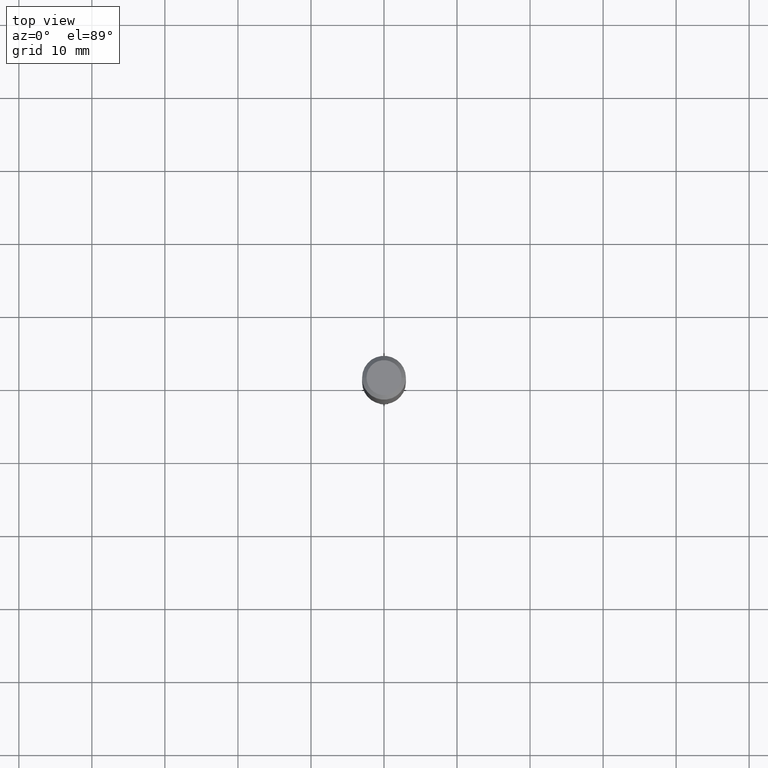
[diagram: clean part render]
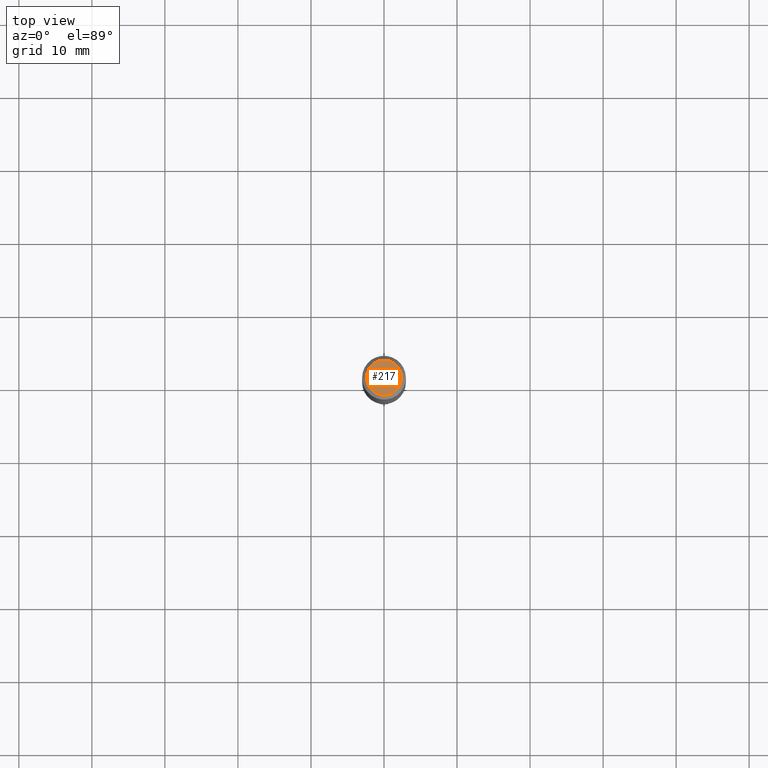
[diagram: same view with one face highlighted and labeled with its STEP entity id]
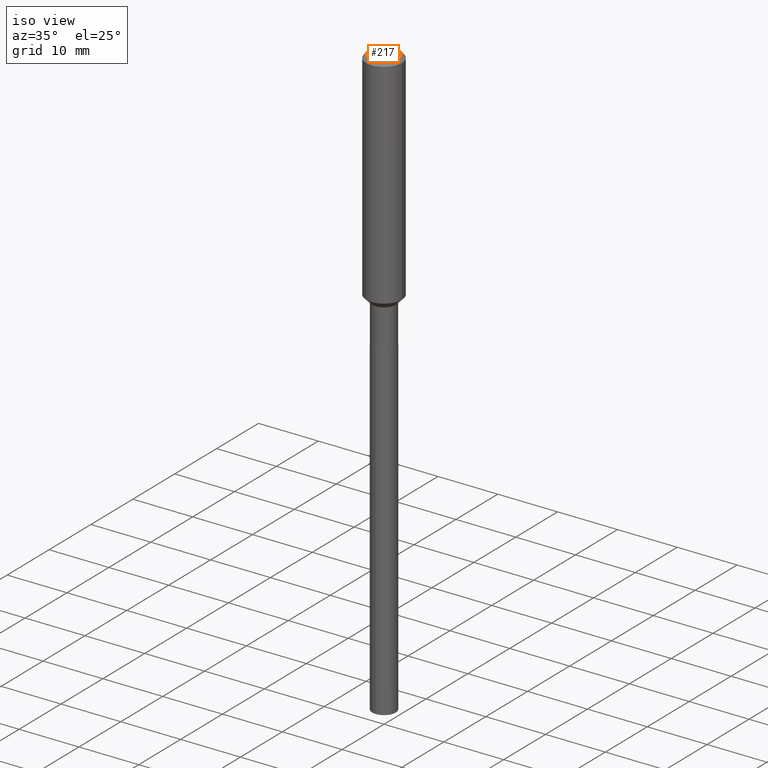
[diagram: same view with one face highlighted and labeled with its STEP entity id]
A machine part, top view. The second image highlights one B-rep face of the part: STEP entity #217.
A second angle (iso view) of the same face is appended — the face is thin or edge-on in the first view.
In plain terms, the highlighted planar face has unit normal (0, -0, -1).
Its self-contained STEP definition (entity closure, byte-faithful):
#12 = DIRECTION ( 'NONE',  ( -2.445468806185136597E-29, 3.491481338843145583E-15, 1.000000000000000000 ) ) ;
#53 = DIRECTION ( 'NONE',  ( 2.438088387897960049E-29, -3.491481338843145188E-15, -1.000000000000000000 ) ) ;
#76 = CIRCLE ( 'NONE', #404, 0.09447999999999998066 ) ;
#91 = AXIS2_PLACEMENT_3D ( 'NONE', #139, #295, #442 ) ;
#96 = ORIENTED_EDGE ( 'NONE', *, *, #413, .T. ) ;
#135 = DIRECTION ( 'NONE',  ( -1.000000000000000000, 6.982962677686265922E-15, -4.876176775795935793E-29 ) ) ;
#137 = FACE_OUTER_BOUND ( 'NONE', #144, .T. ) ;
#139 = CARTESIAN_POINT ( 'NONE',  ( 4.716267017698007905E-46, -6.733579360998555036E-32, -1.928573779297252010E-17 ) ) ;
#143 = CIRCLE ( 'NONE', #91, 0.09447999999999998066 ) ;
#144 = EDGE_LOOP ( 'NONE', ( #96, #333 ) ) ;
#161 = AXIS2_PLACEMENT_3D ( 'NONE', #285, #53, #135 ) ;
#164 = VERTEX_POINT ( 'NONE', #355 ) ;
#171 = EDGE_CURVE ( 'NONE', #296, #164, #76, .T. ) ;
#217 = ADVANCED_FACE ( 'NONE', ( #137 ), #326, .F. ) ;
#285 = CARTESIAN_POINT ( 'NONE',  ( 2.358133508849003952E-46, -3.366789680499277518E-32, -9.642868896486260050E-18 ) ) ;
#293 = CARTESIAN_POINT ( 'NONE',  ( 0.09447999999999998066, -7.704367267948738690E-16, -1.928573779296752193E-17 ) ) ;
#295 = DIRECTION ( 'NONE',  ( -2.445468806185136597E-29, 3.491481338843145583E-15, 1.000000000000000000 ) ) ;
#296 = VERTEX_POINT ( 'NONE', #293 ) ;
#326 = PLANE ( 'NONE',  #161 ) ;
#333 = ORIENTED_EDGE ( 'NONE', *, *, #171, .T. ) ;
#353 = CARTESIAN_POINT ( 'NONE',  ( 4.716267017698007905E-46, -6.733579360998555036E-32, -1.928573779297252010E-17 ) ) ;
#355 = CARTESIAN_POINT ( 'NONE',  ( -0.09447999999999998066, 7.009847083995354710E-16, -1.928573779297727792E-17 ) ) ;
#359 = DIRECTION ( 'NONE',  ( 1.000000000000000000, -6.982962677686267499E-15, 4.875432709231658792E-29 ) ) ;
#404 = AXIS2_PLACEMENT_3D ( 'NONE', #353, #12, #359 ) ;
#413 = EDGE_CURVE ( 'NONE', #164, #296, #143, .T. ) ;
#442 = DIRECTION ( 'NONE',  ( 1.000000000000000000, -6.982962677686267499E-15, 4.875432709231658792E-29 ) ) ;